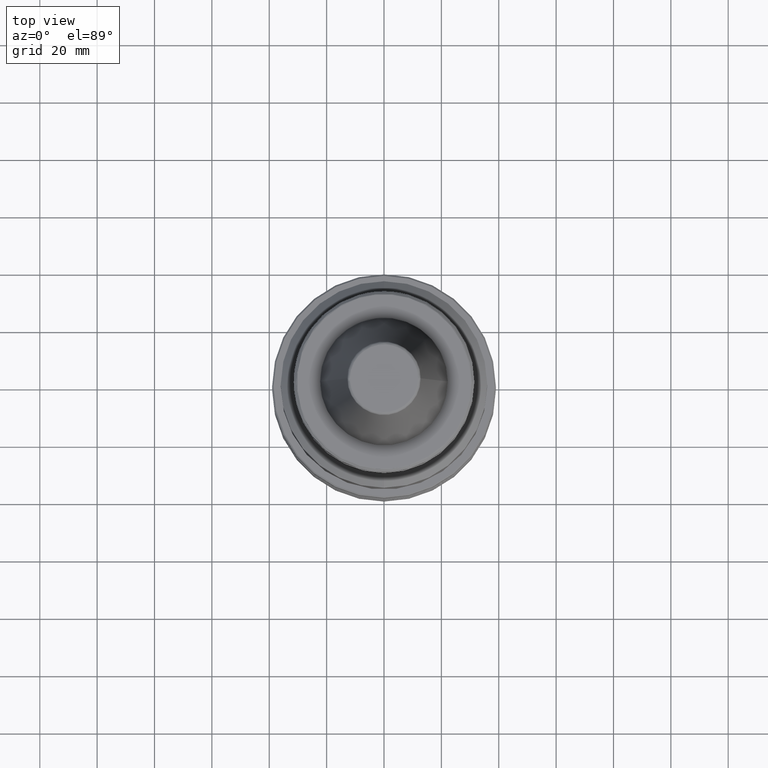
[diagram: clean part render]
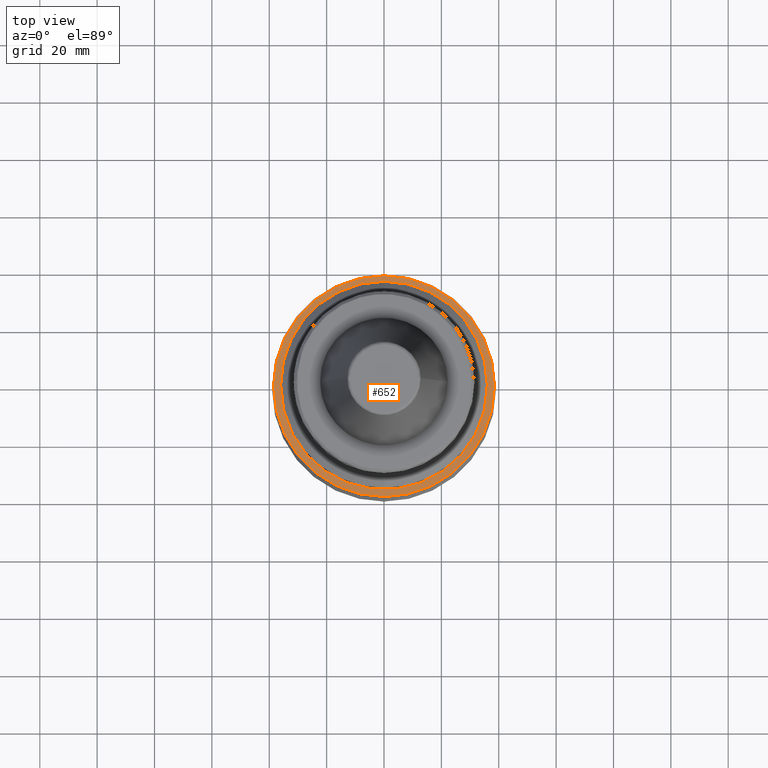
[diagram: same view with one face highlighted and labeled with its STEP entity id]
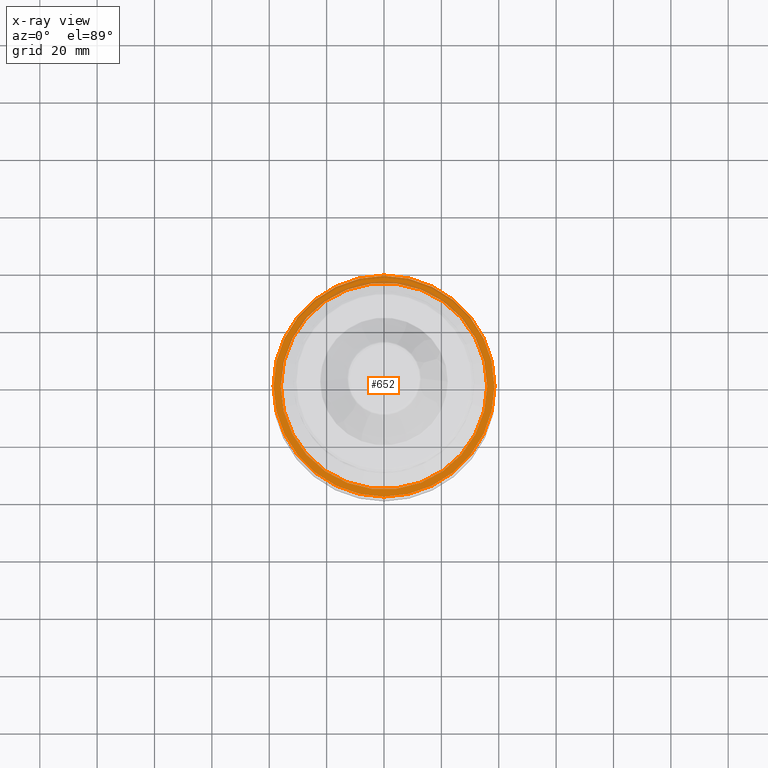
[diagram: x-ray of the same camera — body ghosted, the highlighted face saturated]
A machine part, top view. The second image highlights one B-rep face of the part: STEP entity #652.
The next image is the same camera in x-ray: the body ghosted, the highlighted face saturated — about 8% of this face is hidden behind the body in this view.
In plain terms, the highlighted planar face has unit normal (0, 0, -1).
Its self-contained STEP definition (entity closure, byte-faithful):
#24 = FACE_BOUND ( 'NONE', #2692, .T. ) ;
#93 = AXIS2_PLACEMENT_3D ( 'NONE', #508, #505, #504 ) ;
#133 = EDGE_CURVE ( 'NONE', #2608, #2137, #1637, .T. ) ;
#330 = AXIS2_PLACEMENT_3D ( 'NONE', #2058, #2057, #2053 ) ;
#339 = VERTEX_POINT ( 'NONE', #2242 ) ;
#504 = DIRECTION ( 'NONE',  ( 1.000000000000000000, 0.0000000000000000000, 0.0000000000000000000 ) ) ;
#505 = DIRECTION ( 'NONE',  ( 0.0000000000000000000, 0.0000000000000000000, 1.000000000000000000 ) ) ;
#508 = CARTESIAN_POINT ( 'NONE',  ( 0.0000000000000000000, 0.0000000000000000000, -93.50000000000001400 ) ) ;
#652 = ADVANCED_FACE ( 'NONE', ( #673, #24 ), #1212, .F. ) ;
#673 = FACE_OUTER_BOUND ( 'NONE', #1195, .T. ) ;
#836 = EDGE_CURVE ( 'NONE', #2347, #339, #946, .T. ) ;
#881 = DIRECTION ( 'NONE',  ( 1.000000000000000000, 0.0000000000000000000, 0.0000000000000000000 ) ) ;
#883 = DIRECTION ( 'NONE',  ( 0.0000000000000000000, 0.0000000000000000000, 1.000000000000000000 ) ) ;
#887 = CARTESIAN_POINT ( 'NONE',  ( 0.0000000000000000000, 0.0000000000000000000, -93.50000000000001400 ) ) ;
#946 = CIRCLE ( 'NONE', #2889, 36.00000000000001400 ) ;
#1182 = DIRECTION ( 'NONE',  ( -1.000000000000000000, 0.0000000000000000000, -0.0000000000000000000 ) ) ;
#1185 = DIRECTION ( 'NONE',  ( 0.0000000000000000000, 0.0000000000000000000, -1.000000000000000000 ) ) ;
#1195 = EDGE_LOOP ( 'NONE', ( #1334, #1272 ) ) ;
#1208 = CARTESIAN_POINT ( 'NONE',  ( 38.96200000000000300, -38.96200000000000300, -93.50000000000000000 ) ) ;
#1212 = PLANE ( 'NONE',  #2427 ) ;
#1272 = ORIENTED_EDGE ( 'NONE', *, *, #2078, .F. ) ;
#1334 = ORIENTED_EDGE ( 'NONE', *, *, #133, .F. ) ;
#1355 = CARTESIAN_POINT ( 'NONE',  ( 36.00000000000001400, 0.0000000000000000000, -93.50000000000001400 ) ) ;
#1450 = AXIS2_PLACEMENT_3D ( 'NONE', #2622, #2526, #3134 ) ;
#1566 = CIRCLE ( 'NONE', #93, 36.00000000000001400 ) ;
#1637 = CIRCLE ( 'NONE', #1450, 38.50000000000002800 ) ;
#1938 = ORIENTED_EDGE ( 'NONE', *, *, #2592, .F. ) ;
#1958 = ORIENTED_EDGE ( 'NONE', *, *, #836, .F. ) ;
#2017 = CARTESIAN_POINT ( 'NONE',  ( 38.50000000000002800, 4.745506346695995700E-015, -93.50000000000002800 ) ) ;
#2053 = DIRECTION ( 'NONE',  ( -1.000000000000000000, 0.0000000000000000000, 0.0000000000000000000 ) ) ;
#2057 = DIRECTION ( 'NONE',  ( 0.0000000000000000000, 0.0000000000000000000, -1.000000000000000000 ) ) ;
#2058 = CARTESIAN_POINT ( 'NONE',  ( 0.0000000000000000000, 0.0000000000000000000, -93.50000000000002800 ) ) ;
#2078 = EDGE_CURVE ( 'NONE', #2137, #2608, #2269, .T. ) ;
#2137 = VERTEX_POINT ( 'NONE', #2017 ) ;
#2242 = CARTESIAN_POINT ( 'NONE',  ( -36.00000000000001400, 4.408728476930472400E-015, -93.50000000000001400 ) ) ;
#2269 = CIRCLE ( 'NONE', #330, 38.50000000000002800 ) ;
#2347 = VERTEX_POINT ( 'NONE', #1355 ) ;
#2358 = CARTESIAN_POINT ( 'NONE',  ( -38.50000000000002800, 0.0000000000000000000, -93.50000000000002800 ) ) ;
#2427 = AXIS2_PLACEMENT_3D ( 'NONE', #1208, #1185, #1182 ) ;
#2526 = DIRECTION ( 'NONE',  ( 0.0000000000000000000, 0.0000000000000000000, -1.000000000000000000 ) ) ;
#2592 = EDGE_CURVE ( 'NONE', #339, #2347, #1566, .T. ) ;
#2608 = VERTEX_POINT ( 'NONE', #2358 ) ;
#2622 = CARTESIAN_POINT ( 'NONE',  ( 0.0000000000000000000, 0.0000000000000000000, -93.50000000000002800 ) ) ;
#2692 = EDGE_LOOP ( 'NONE', ( #1958, #1938 ) ) ;
#2889 = AXIS2_PLACEMENT_3D ( 'NONE', #887, #883, #881 ) ;
#3134 = DIRECTION ( 'NONE',  ( -1.000000000000000000, 0.0000000000000000000, 0.0000000000000000000 ) ) ;